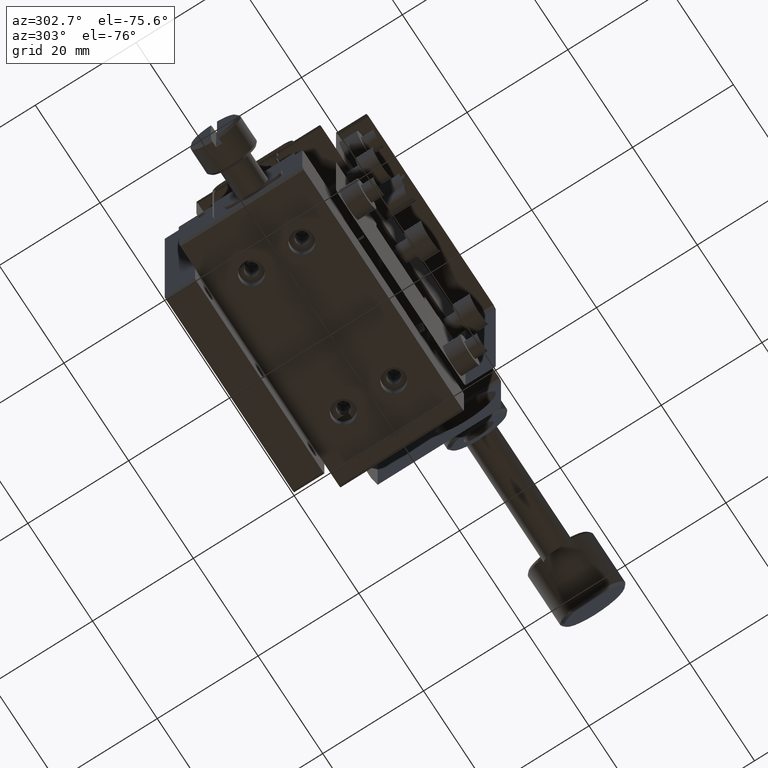
[diagram: clean part render]
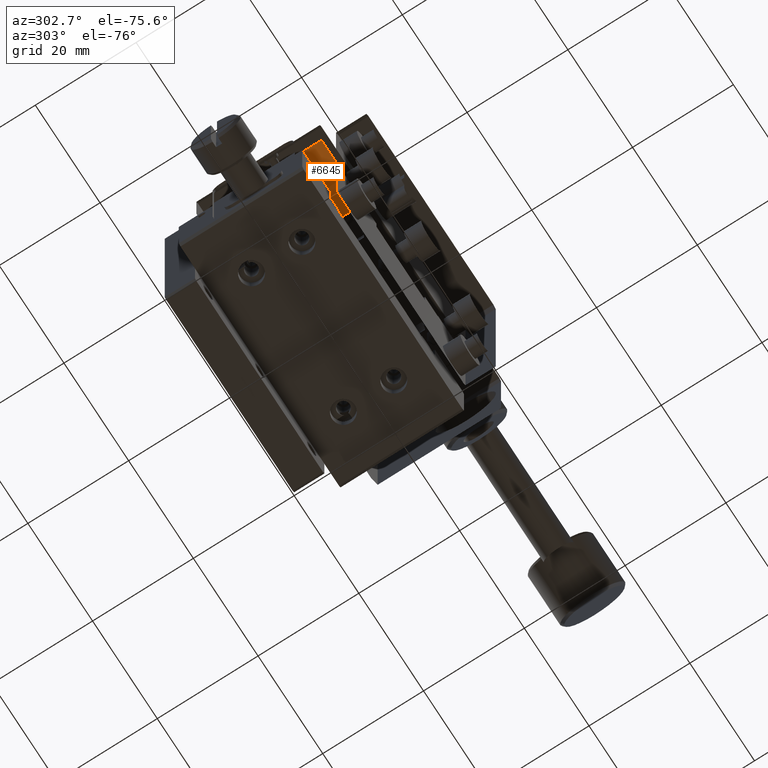
[diagram: same view with one face highlighted and labeled with its STEP entity id]
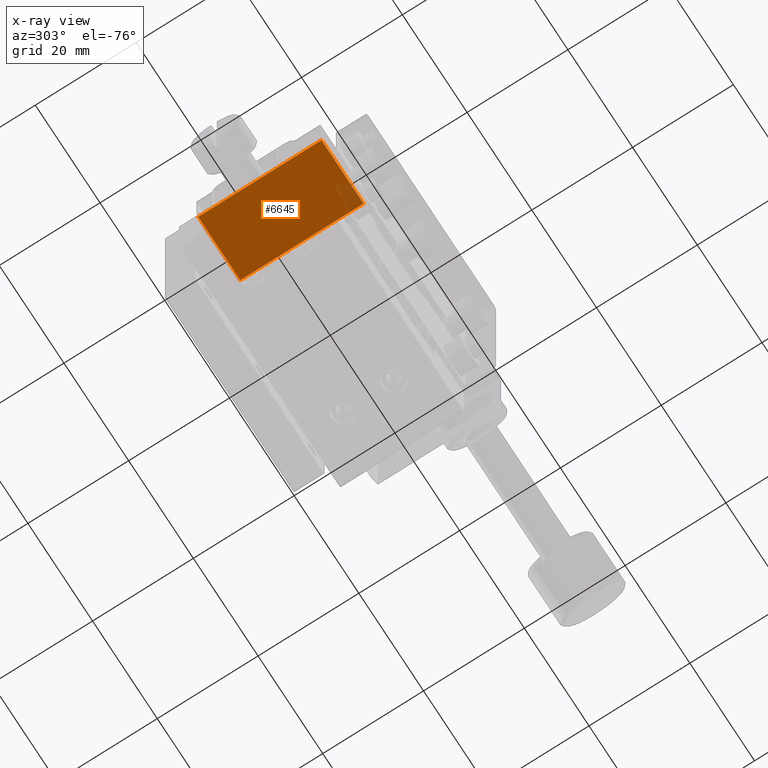
[diagram: x-ray of the same camera — body ghosted, the highlighted face saturated]
A machine part, auxiliary view. The second image highlights one B-rep face of the part: STEP entity #6645.
The next image is the same camera in x-ray: the body ghosted, the highlighted face saturated — about 4% of this face is hidden behind the body in this view.
In plain terms, the highlighted planar face has unit normal (0, 0, 1).
Its self-contained STEP definition (entity closure, byte-faithful):
#15 = CARTESIAN_POINT ( 'NONE',  ( -4.500000000000000888, 30.50000000000000000, -20.50000000000000000 ) ) ;
#209 = CARTESIAN_POINT ( 'NONE',  ( -4.500000000000000888, 30.50000000000000000, -20.50000000000000000 ) ) ;
#258 = EDGE_LOOP ( 'NONE', ( #2994, #5876, #2378, #6093, #2017 ) ) ;
#286 = CARTESIAN_POINT ( 'NONE',  ( 6.000000000000009770, 6.000000000000000000, -20.50000000000000000 ) ) ;
#859 = VERTEX_POINT ( 'NONE', #1582 ) ;
#1163 = DIRECTION ( 'NONE',  ( 0.000000000000000000, 0.000000000000000000, 1.000000000000000000 ) ) ;
#1320 = CARTESIAN_POINT ( 'NONE',  ( 8.500000000000010658, 5.999999999999998224, -20.50000000000000000 ) ) ;
#1582 = CARTESIAN_POINT ( 'NONE',  ( 0.000000000000000000, 5.999999999999999112, -20.50000000000000000 ) ) ;
#1822 = LINE ( 'NONE', #6108, #3274 ) ;
#1823 = LINE ( 'NONE', #286, #3100 ) ;
#1858 = DIRECTION ( 'NONE',  ( 1.000000000000000000, 0.000000000000000000, -0.000000000000000000 ) ) ;
#2017 = ORIENTED_EDGE ( 'NONE', *, *, #8124, .T. ) ;
#2018 = LINE ( 'NONE', #209, #8428 ) ;
#2031 = CARTESIAN_POINT ( 'NONE',  ( 8.500000000000010658, 30.50000000000000000, -20.50000000000000000 ) ) ;
#2378 = ORIENTED_EDGE ( 'NONE', *, *, #7693, .T. ) ;
#2994 = ORIENTED_EDGE ( 'NONE', *, *, #4541, .F. ) ;
#3100 = VECTOR ( 'NONE', #5081, 1000.000000000000000 ) ;
#3274 = VECTOR ( 'NONE', #5199, 1000.000000000000000 ) ;
#3564 = FACE_OUTER_BOUND ( 'NONE', #258, .T. ) ;
#4541 = EDGE_CURVE ( 'NONE', #859, #6997, #1823, .T. ) ;
#4651 = VERTEX_POINT ( 'NONE', #2031 ) ;
#4830 = VECTOR ( 'NONE', #1858, 1000.000000000000000 ) ;
#4951 = LINE ( 'NONE', #8397, #4830 ) ;
#5081 = DIRECTION ( 'NONE',  ( -1.000000000000000000, -0.000000000000000000, 0.000000000000000000 ) ) ;
#5199 = DIRECTION ( 'NONE',  ( -0.000000000000000000, 1.000000000000000000, 0.000000000000000000 ) ) ;
#5251 = LINE ( 'NONE', #6274, #5367 ) ;
#5367 = VECTOR ( 'NONE', #9548, 1000.000000000000000 ) ;
#5876 = ORIENTED_EDGE ( 'NONE', *, *, #8085, .T. ) ;
#5967 = EDGE_CURVE ( 'NONE', #4651, #7637, #5251, .T. ) ;
#6093 = ORIENTED_EDGE ( 'NONE', *, *, #5967, .T. ) ;
#6108 = CARTESIAN_POINT ( 'NONE',  ( 8.500000000000010658, 30.50000000000000000, -20.50000000000000000 ) ) ;
#6192 = PLANE ( 'NONE',  #8747 ) ;
#6274 = CARTESIAN_POINT ( 'NONE',  ( 8.500000000000010658, 30.50000000000000000, -20.50000000000000000 ) ) ;
#6645 = ADVANCED_FACE ( 'NONE', ( #3564 ), #6192, .T. ) ;
#6997 = VERTEX_POINT ( 'NONE', #9908 ) ;
#7174 = VERTEX_POINT ( 'NONE', #1320 ) ;
#7637 = VERTEX_POINT ( 'NONE', #15 ) ;
#7693 = EDGE_CURVE ( 'NONE', #7174, #4651, #1822, .T. ) ;
#8085 = EDGE_CURVE ( 'NONE', #859, #7174, #4951, .T. ) ;
#8124 = EDGE_CURVE ( 'NONE', #7637, #6997, #2018, .T. ) ;
#8397 = CARTESIAN_POINT ( 'NONE',  ( 0.000000000000000000, 6.000000000000000000, -20.50000000000000000 ) ) ;
#8428 = VECTOR ( 'NONE', #9158, 1000.000000000000000 ) ;
#8505 = CARTESIAN_POINT ( 'NONE',  ( 8.500000000000010658, 30.50000000000000000, -20.50000000000000000 ) ) ;
#8663 = DIRECTION ( 'NONE',  ( 1.000000000000000000, 0.000000000000000000, -0.000000000000000000 ) ) ;
#8747 = AXIS2_PLACEMENT_3D ( 'NONE', #8505, #1163, #8663 ) ;
#9158 = DIRECTION ( 'NONE',  ( 0.000000000000000000, -1.000000000000000000, -0.000000000000000000 ) ) ;
#9548 = DIRECTION ( 'NONE',  ( -1.000000000000000000, -0.000000000000000000, 0.000000000000000000 ) ) ;
#9908 = CARTESIAN_POINT ( 'NONE',  ( -4.500000000000000888, 5.999999999999984901, -20.50000000000000000 ) ) ;